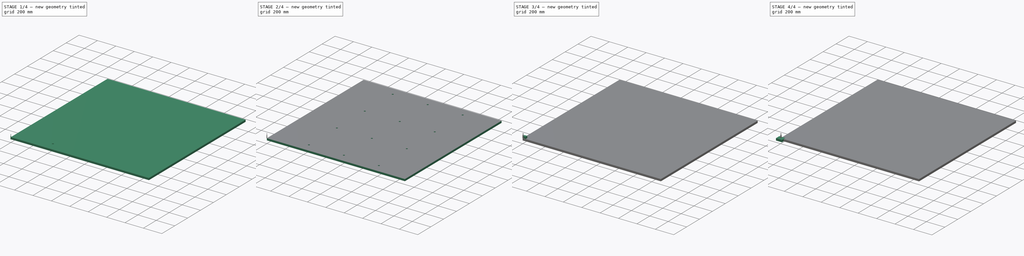
[diagram: build sequence overview — one tinted view per stage of 4, left to right]
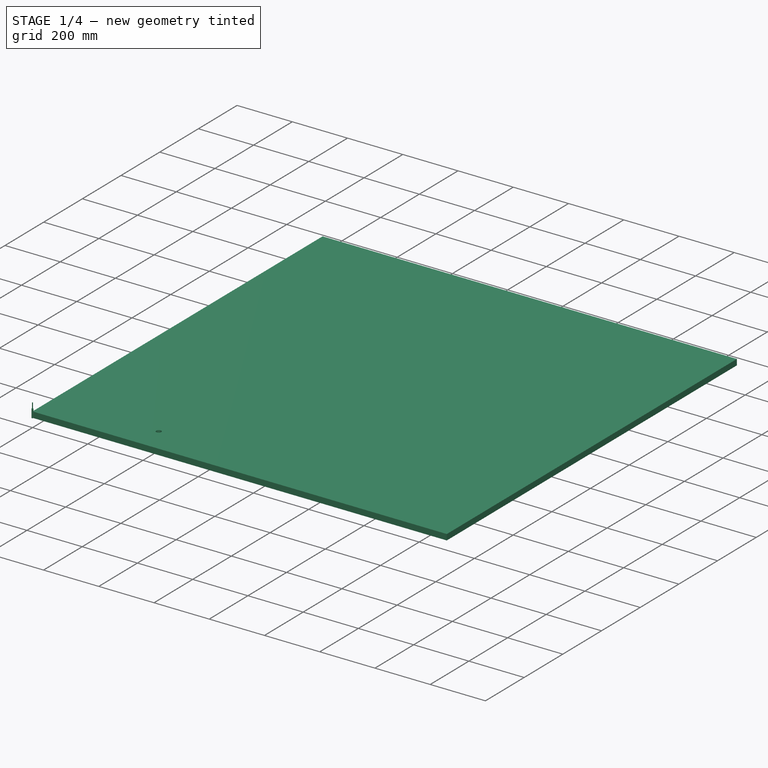
[diagram: stage 1 of 4 — iso view after this stage's code; geometry added in this stage tinted green]
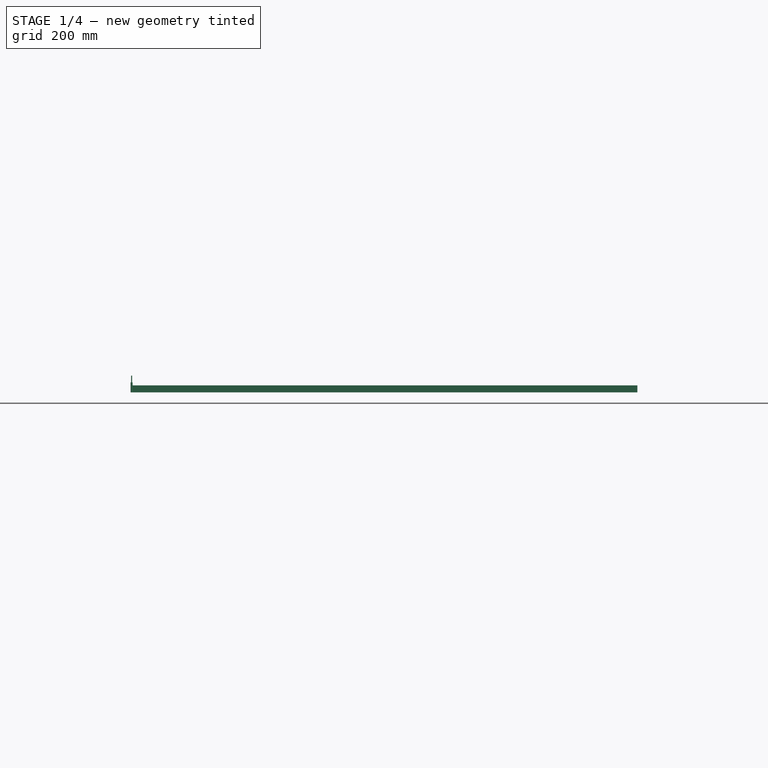
[diagram: stage 1 of 4 — front view after this stage's code; geometry added in this stage tinted green]
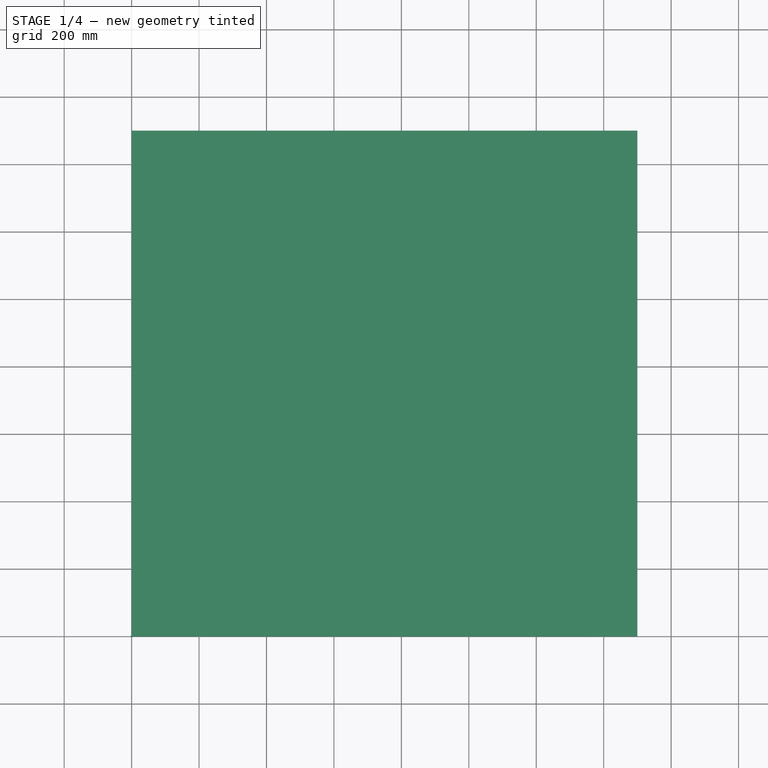
[diagram: stage 1 of 4 — top view after this stage's code; geometry added in this stage tinted green]
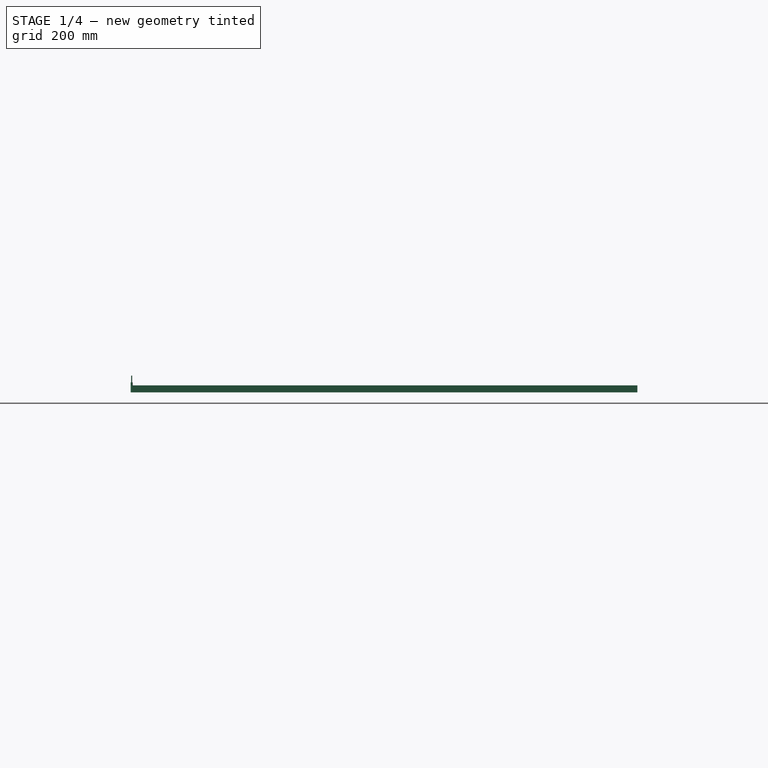
[diagram: stage 1 of 4 — right view after this stage's code; geometry added in this stage tinted green]
FCSTD DOCUMENT  (FreeCAD 0.20R29410 (Git))
Label: test_cnc_hole
License: All rights reserved
LicenseURL: http://en.wikipedia.org/wiki/All_rights_reserved
objects: Path::FeaturePython×8, Part::FeaturePython×6, App::DocumentObjectGroup×6, Sketcher::SketchObject×5, PartDesign::Pad×3, PartDesign::Mirrored×3, PartDesign::MultiTransform×2, PartDesign::Body×2, App::FeaturePython×2, Part::Feature×2, PartDesign::Pocket×2, PartDesign::LinearPattern×2, PartDesign::Plane×1
note: 35 computed .brp shape members not serialized (recipe doc carries the construction recipe); baked Part::Feature solids carry a one-line shape summary decoded from their .brp

FEATURE [Path::FeaturePython] _mm_Endmill001  label="6mm_Endmill001"  # Path/CAM operation (typed FeaturePython)
  HorizFeed = 0.333333
  HorizRapid = 0
  SpindleDir = 0
  SpindleSpeed = 17000
  Tool = -> ToolBit001
  ToolNumber = 2
  VertFeed = 0.333333
  VertRapid = 0
  expr: HorizRapid = SetupSheet.HorizRapid
  expr: VertRapid = SetupSheet.VertRapid
FEATURE [App::DocumentObjectGroup] Tools
  Group = -> [_mm_Endmill001]
FEATURE [Path::FeaturePython] Pocket3D  # Path/CAM operation (typed FeaturePython)
  Active = true
  AdaptivePocketFinish = false
  AdaptivePocketStart = false
  AreaParams:
    Tolerance = 1e-07
    FitArcs = True
    Simplify = False
    CleanDistance = 0.0
    Accuracy = 0.01
    Unit = 1.0
    MinArcPoints = 4
    MaxArcPoints = 100
    ClipperScale = 10000000.0
    Fill = 0
    Coplanar = 0
    Reorient = True
    Outline = False
    Explode = False
    OpenMode = 0
    Deflection = 0.01
    SubjectFill = 0
    ClipFill = 0
    Offset = 0.0
    ExtraPass = 0
    Stepover = 0.0
    LastStepover = 0.0
    JoinType = 0
    EndType = 0
    MiterLimit = 2.0
    RoundPrecision = 0.0
    PocketMode = 4
    ToolRadius = 3.0
    PocketExtraOffset = 0.0
    PocketStepover = 3.0
    PocketLastStepover = 0.0
    FromCenter = True
    Angle = 45.0
    AngleShift = 0.0
    Shift = 0.0
    Thicken = False
    SectionCount = -1
    Stepdown = 1.0
    SectionOffset = 0.0
    SectionTolerance = 1e-06
    SectionMode = 2
    Project = False
  Base = -> [Clone]
  ClearanceHeight = 6
  CoolantMode = 0
  CutMode = 1
  CycleTime = 00:47:56
  ExtraOffset = 0
  FinalDepth = -21
  FinishDepth = 0
  HandleMultipleFeatures = 0
  KeepToolDown = true
  MinTravel = true
  OffsetPattern = 2
  OpFinalDepth = -21
  OpStartDepth = 1
  OpStockZMax = 1
  OpStockZMin = -22
  OpToolDiameter = 6
  PathParams = {'orientation': 0, 'sort_mode': 3, 'threshold': 6.003, 'feedrate': 0.3333333333333333, 'feedrate_v': 0.3333333333333333, 'verbose': True, 'resume_height': 3.9999999999999964, 'retraction': 5.9999999999999964, 'return_end': True, 'preamble': False, 'start': Vector (0.0, 0.0, 0.0)}
  PocketLastStepOver = 0
  ProcessStockArea = false
  SafeHeight = 4
  SplitArcs = false
  StartAt = 0
  StartDepth = 1
  StartPoint = (0,0,0)
  StepDown = 3
  StepOver = 50
  ToolController = -> _mm_Endmill001
  UseStartPoint = true
  ZigZagAngle = 45
  expr: ClearanceHeight = OpStockZMax + SetupSheet.ClearanceHeightOffset
  expr: FinalDepth = OpFinalDepth
  expr: OpFinalDepth = -21mm
  expr: SafeHeight = OpStockZMax + SetupSheet.SafeHeightOffset
  expr: StartDepth = OpStartDepth
  expr: StepDown = 3
FEATURE [Path::FeaturePython] Array  # Path/CAM operation (typed FeaturePython)
  Active = true
  Angle = 0
  Base = -> [Pocket3D]
  Centre = (0,0,0)
  Copies = 2
  CopiesX = 0
  CopiesY = 0
  JitterMagnitude = (0,0,0)
  JitterPercent = 0
  JitterSeed = 0
  Offset = (0,362,0)
  SwapDirection = false
  ToolController = -> _mm_Endmill001
  Type = 0
  expr: .Placement.Base.x = Pocket3D.Placement.Base.x
  expr: .Placement.Base.y = Pocket3D.Placement.Base.y
FEATURE [Path::FeaturePython] Array001  # Path/CAM operation (typed FeaturePython)
  Active = true
  Angle = 0
  Base = -> [Array,Pocket3D]
  Centre = (0,0,0)
  Copies = 2
  CopiesX = 0
  CopiesY = 0
  JitterMagnitude = (0,0,0)
  JitterPercent = 0
  JitterSeed = 0
  Offset = (380,0,0)
  SwapDirection = false
  ToolController = -> _mm_Endmill001
  Type = 0
  expr: .Placement.Base.x = Pocket3D.Placement.Base.x
  expr: .Placement.Base.y = Pocket3D.Placement.Base.y
FEATURE [App::DocumentObjectGroup] Operations
  Group = -> [Pocket3D,Array,Array001]
FEATURE [Path::FeaturePython] Job  # Path/CAM operation (typed FeaturePython)
  CycleTime = 00:47:56
  Fixtures = G54
  GeometryTolerance = 0.01
  JobType = 0
  LastPostProcessDate = 2022-11-11 11:24:31.074388
  LastPostProcessOutput = <userpath>/dwnlds/10.test_cnc_hole.nc
  Model = -> Model
  Operations = -> Operations
  OrderOutputBy = 0
  PostProcessor = 11
  PostProcessorOutputFile = 10.%d.nc
  SetupSheet = -> SetupSheet
  SplitOutput = false
  Stock = -> Stock
  Tools = -> Tools
FEATURE [Part::Feature] topEdgeFace001
  shape: bbox 18 x 18 x 2e-07 mm, 1 faces, 0 solids (baked)
FEATURE [Part::Feature] topEdgeFace001001  label="topEdgeFace001"
  shape: bbox 18 x 18 x 2e-07 mm, 1 faces, 0 solids (baked)
FEATURE [Sketcher::SketchObject] Sketch002
  FullyConstrained = true
  MapMode = 5
  Support = -> [XY_Plane001]
  sketch-geometry (4):
    g0: LineSegment StartX=0 StartY=0 StartZ=0 EndX=1500 EndY=0 EndZ=0
    g1: LineSegment StartX=1500 StartY=0 StartZ=0 EndX=1500 EndY=1500 EndZ=0
    g2: LineSegment StartX=1500 StartY=1500 StartZ=0 EndX=0 EndY=1500 EndZ=0
    g3: LineSegment StartX=0 StartY=1500 StartZ=0 EndX=0 EndY=0 EndZ=0
  constraints (11):
    c: Coincident(g0,g1)
    c: Coincident(g1,g2)
    c: Coincident(g2,g3)
    c: Coincident(g3,g0)
    c: Horizontal(g0)
    c: Horizontal(g2)
    c: Vertical(g1)
    c: Vertical(g3)
    c: Coincident(g0,g-1)
    c: Distance(g0) = 1500
    c: Distance(g3) = 1500
FEATURE [PartDesign::Pad] Pad002
  Direction = (0,0,1)
  Length = 21
  Length2 = 10
  Profile = -> Sketch002
  ReferenceAxis = -> Sketch002 [N_Axis]
  Type = 0
FEATURE [Sketcher::SketchObject] Sketch004
  AttachmentOffset = pos=(387,100,21) rot=(0,0,1;0rad)
  FullyConstrained = true
  MapMode = 5
  Placement = pos=(387,100,21) rot=(0,0,1;0rad)
  Support = -> [XY_Plane001]
  sketch-geometry (1):
    g0: Circle CenterX=0 CenterY=0 CenterZ=0 NormalX=0 NormalY=0 NormalZ=1 AngleXU=0 Radius=9
  constraints (2):
    c: Diameter(g0) = 18
    c: Coincident(g0,g-1)
FEATURE [PartDesign::Plane] DatumPlane
  AttachmentOffset = pos=(0,0,-750) rot=(0,0,1;0rad)
  Length = 1580.23
  MapMode = 5
  Placement = pos=(0,750,-1.665e-13) rot=(1,0,0;1.5708rad)
  ResizeMode = 0
  Support = -> [XZ_Plane001]
  Width = 105.227
FEATURE [PartDesign::Pocket] Pocket
  BaseFeature = -> Pad002
  Direction = (0,0,-1)
  Length = 16
  Length2 = 5
  Profile = -> Sketch004
  ReferenceAxis = -> Sketch004 [N_Axis]
  Type = 0
FEATURE [Part::FeaturePython] ToolBit002  label="6mm_Endmill002"  # Path/CAM toolbit (typed FeaturePython)
  BitPropertyNames = Chipload | CuttingEdgeHeight | Diameter | Flutes | Length | Material | ShankDiameter | SpindleDirection
  BitShape = <path>
  Chipload = 0
  CuttingEdgeHeight = 30
  Diameter = 6
  File = <userpath>/.local/share/FreeCAD/Macro/Bit/6mm_Endmill.fctb
  Flutes = 0
  Length = 50
  Material = 0
  ShankDiameter = 3
  ShapeName = endmill
  SpindleDirection = 0
FEATURE [Path::FeaturePython] _mm_Endmill002  label="6mm_Endmill003"  # Path/CAM operation (typed FeaturePython)
  HorizFeed = 0
  HorizRapid = 0
  SpindleDir = 0
  SpindleSpeed = 4
  Tool = -> ToolBit002
  ToolNumber = 2
  VertFeed = 0
  VertRapid = 0
  expr: HorizRapid = SetupSheet001.HorizRapid
  expr: VertRapid = SetupSheet001.VertRapid
FEATURE [App::DocumentObjectGroup] Tools001
  Group = -> [_mm_Endmill002]
FEATURE [Path::FeaturePython] Pocket3D001  # Path/CAM operation (typed FeaturePython)
  Active = true
  AdaptivePocketFinish = false
  AdaptivePocketStart = false
  AreaParams:
    Tolerance = 1e-07
    FitArcs = True
    Simplify = False
    CleanDistance = 0.0
    Accuracy = 0.01
    Unit = 1.0
    MinArcPoints = 4
    MaxArcPoints = 100
    ClipperScale = 10000000.0
    Fill = 0
    Coplanar = 0
    Reorient = True
    Outline = False
    Explode = False
    OpenMode = 0
    Deflection = 0.01
    SubjectFill = 0
    ClipFill = 0
    Offset = 0.0
    ExtraPass = 0
    Stepover = 0.0
    LastStepover = 0.0
    JoinType = 0
    EndType = 0
    MiterLimit = 2.0
    RoundPrecision = 0.0
    PocketMode = 4
    ToolRadius = 3.0
    PocketExtraOffset = 0.0
    PocketStepover = 3.0
    PocketLastStepover = 0.0
    FromCenter = True
    Angle = 45.0
    AngleShift = 0.0
    Shift = 0.0
    Thicken = False
    SectionCount = -1
    Stepdown = 1.0
    SectionOffset = 0.0
    SectionTolerance = 1e-06
    SectionMode = 2
    Project = False
  ClearanceHeight = 5
  CoolantMode = 0
  CutMode = 1
  CycleTime = Cycletime Error
  ExtraOffset = 0
  FinalDepth = -21
  FinishDepth = 0
  HandleMultipleFeatures = 0
  KeepToolDown = true
  MinTravel = true
  OffsetPattern = 2
  OpFinalDepth = -21
  OpStartDepth = 3
  OpStockZMax = 0
  OpStockZMin = -22
  OpToolDiameter = 6
  PathParams = {'orientation': 0, 'sort_mode': 3, 'threshold': 6.003, 'feedrate': 0.0, 'feedrate_v': 0.0, 'verbose': True, 'resume_height': 3.0, 'retraction': 5.0, 'return_end': True, 'preamble': False, 'start': Vector (0.0, 0.0, 0.0)}
  PocketLastStepOver = 0
  ProcessStockArea = true
  SafeHeight = 3
  SplitArcs = false
  StartAt = 0
  StartDepth = 3
  StartPoint = (0,0,0)
  StepDown = 3
  StepOver = 50
  ToolController = -> _mm_Endmill002
  UseStartPoint = true
  ZigZagAngle = 45
  expr: ClearanceHeight = OpStockZMax + SetupSheet001.ClearanceHeightOffset
  expr: FinalDepth = OpFinalDepth
  expr: OpFinalDepth = -21mm
  expr: SafeHeight = OpStockZMax + SetupSheet001.SafeHeightOffset
  expr: StartDepth = OpStartDepth
FEATURE [App::DocumentObjectGroup] Operations001
  Group = -> [Pocket3D001]
FEATURE [Path::FeaturePython] Job001  # Path/CAM operation (typed FeaturePython)
  CycleTime = 00:00:00
  Fixtures = G54
  GeometryTolerance = 0.01
  JobType = 0
  LastPostProcessDate = 2022-11-11 12:28:00.187743
  LastPostProcessOutput = <userpath>/CE7D-4C9E/12.test_cnc_hole.nc
  Model = -> Model001
  Operations = -> Operations001
  OrderOutputBy = 0
  PostProcessor = 11
  PostProcessorOutputFile = holes.%d.nc
  SetupSheet = -> SetupSheet001
  SplitOutput = false
  Stock = -> Stock001
  Tools = -> Tools001
note: 2 file-system paths scrubbed to <path> (originals preserved in the JSON sidecar)
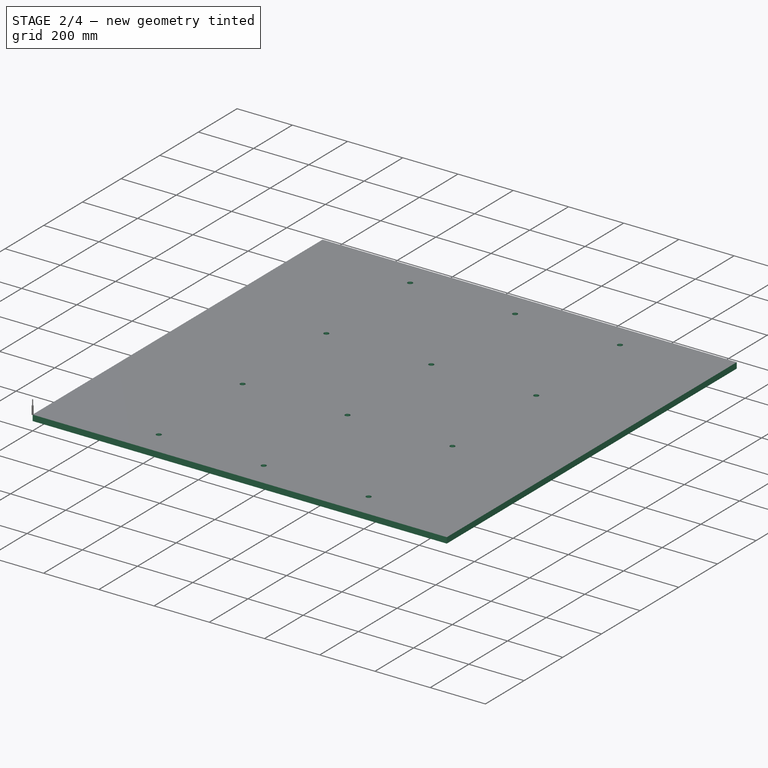
[diagram: stage 2 of 4 — iso view after this stage's code; geometry added in this stage tinted green]
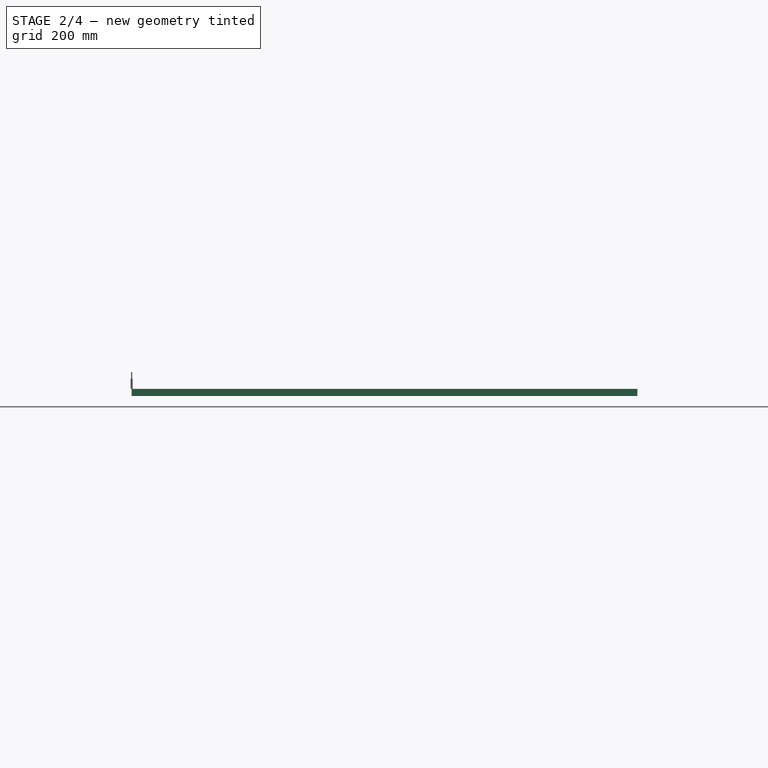
[diagram: stage 2 of 4 — front view after this stage's code; geometry added in this stage tinted green]
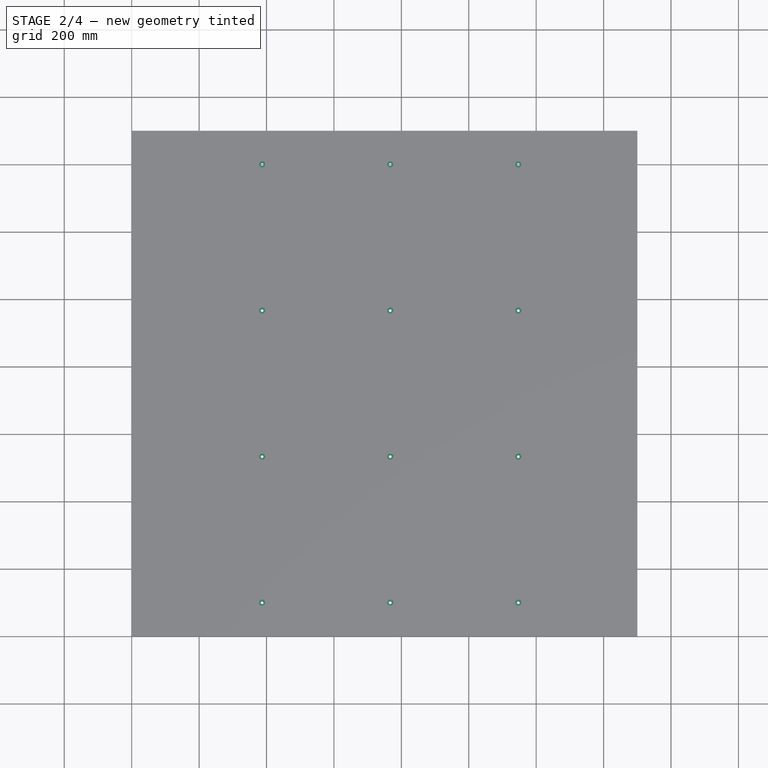
[diagram: stage 2 of 4 — top view after this stage's code; geometry added in this stage tinted green]
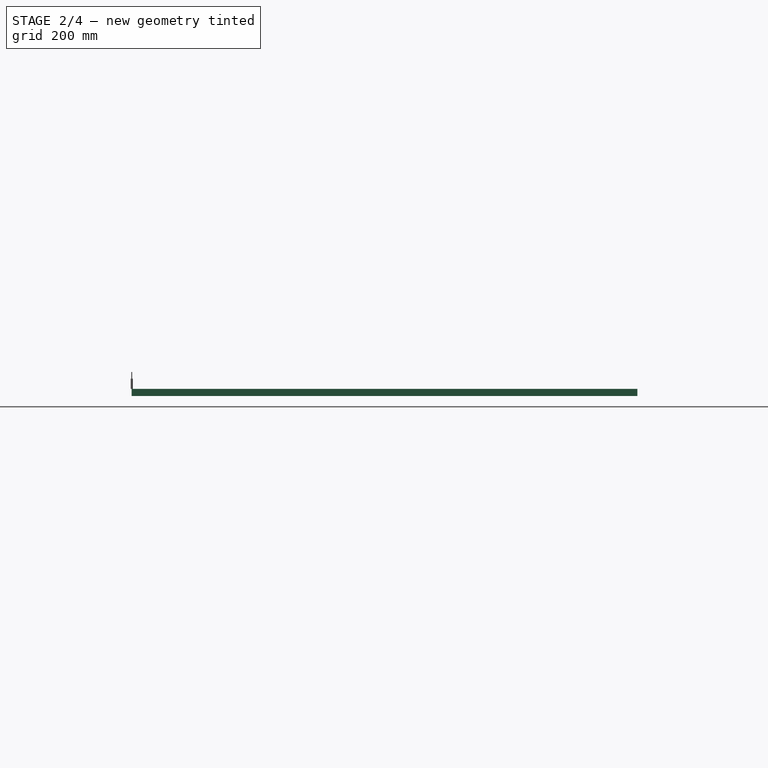
[diagram: stage 2 of 4 — right view after this stage's code; geometry added in this stage tinted green]
FEATURE [Sketcher::SketchObject] Sketch005
  AttachmentOffset = pos=(387,100,21) rot=(0,0,1;0rad)
  FullyConstrained = true
  MapMode = 5
  Placement = pos=(387,100,21) rot=(0,0,1;0rad)
  Support = -> [XY_Plane001]
  expr: .AttachmentOffset.Base.x = Sketch004.AttachmentOffset.Base.x
  expr: .AttachmentOffset.Base.y = Sketch004.AttachmentOffset.Base.y
  expr: .AttachmentOffset.Base.z = Sketch004.AttachmentOffset.Base.z
  sketch-geometry (1):
    g0: Circle CenterX=0 CenterY=0 CenterZ=0 NormalX=0 NormalY=0 NormalZ=1 AngleXU=0 Radius=4
  constraints (2):
    c: Coincident(g0,g-1)
    c: Diameter(g0) = 8
FEATURE [PartDesign::Pocket] Pocket001
  BaseFeature = -> Pocket
  Direction = (0,0,-1)
  Length = 5
  Length2 = 5
  Profile = -> Sketch005
  ReferenceAxis = -> Sketch005 [N_Axis]
  Type = 1
FEATURE [PartDesign::LinearPattern] LinearPattern
  Direction = -> Sketch004 [V_Axis]
  Length = 433.33
  Occurrences = 2
FEATURE [PartDesign::Mirrored] Mirrored002
  MirrorPlane = -> DatumPlane
FEATURE [PartDesign::LinearPattern] LinearPattern001
  Direction = -> Sketch004 [H_Axis]
  Length = 760
  Occurrences = 3
FEATURE [PartDesign::MultiTransform] MultiTransform001
  BaseFeature = -> Pocket001
  Originals = -> [Pocket,Pocket001]
  Transformations = -> [LinearPattern,Mirrored002,LinearPattern001]
FEATURE [PartDesign::Body] Body001
  Group = -> [Sketch002,Pad002,Sketch004,DatumPlane,Pocket,Sketch005,Pocket001,MultiTransform001,LinearPattern,Mirrored002,LinearPattern001]
  Origin = -> Origin001
  Tip = -> MultiTransform001
FEATURE [App::FeaturePython] SetupSheet001  # Path/CAM operation (typed FeaturePython)
  ClearanceHeightExpression = OpStockZMax+SetupSheet001.ClearanceHeightOffset
  ClearanceHeightOffset = 5
  CoolantMode = 0
  CoolantModes = None | Flood | Mist
  FinalDepthExpression = OpFinalDepth
  HorizRapid = 0
  SafeHeightExpression = OpStockZMax+SetupSheet001.SafeHeightOffset
  SafeHeightOffset = 3
  StartDepthExpression = OpStartDepth
  StepDownExpression = OpToolDiameter
  VertRapid = 0
FEATURE [Part::FeaturePython] Clone001  label="Model-Body001"  # Draft clone (typed FeaturePython)
  AttacherType = Attacher::AttachEngine3D
  Fuse = false
  Objects = -> [Body001]
  PathResource = Model
  Placement = pos=(0,0,-21) rot=(0,0,1;0rad)
  Scale = (1,1,1)
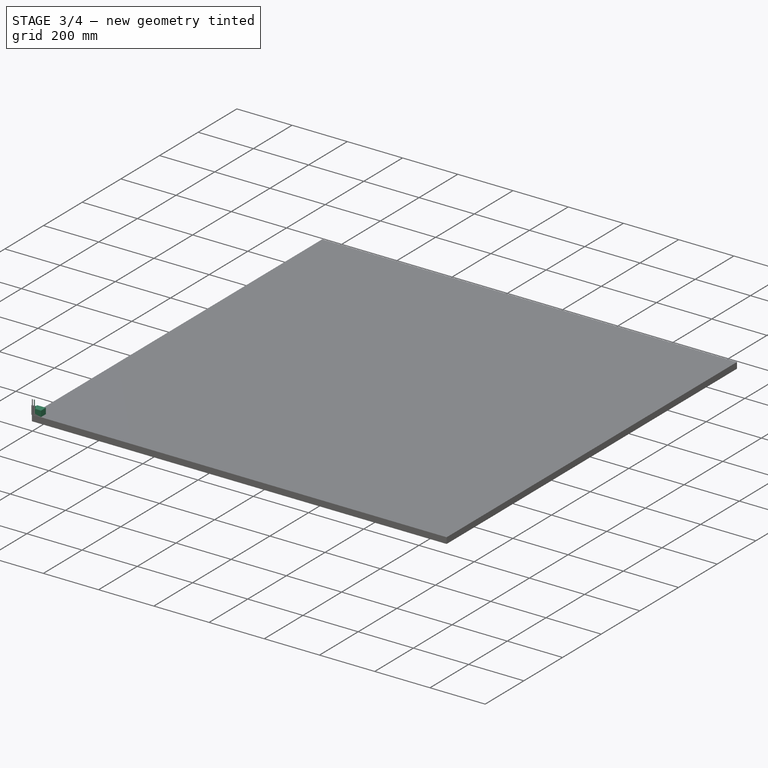
[diagram: stage 3 of 4 — iso view after this stage's code; geometry added in this stage tinted green]
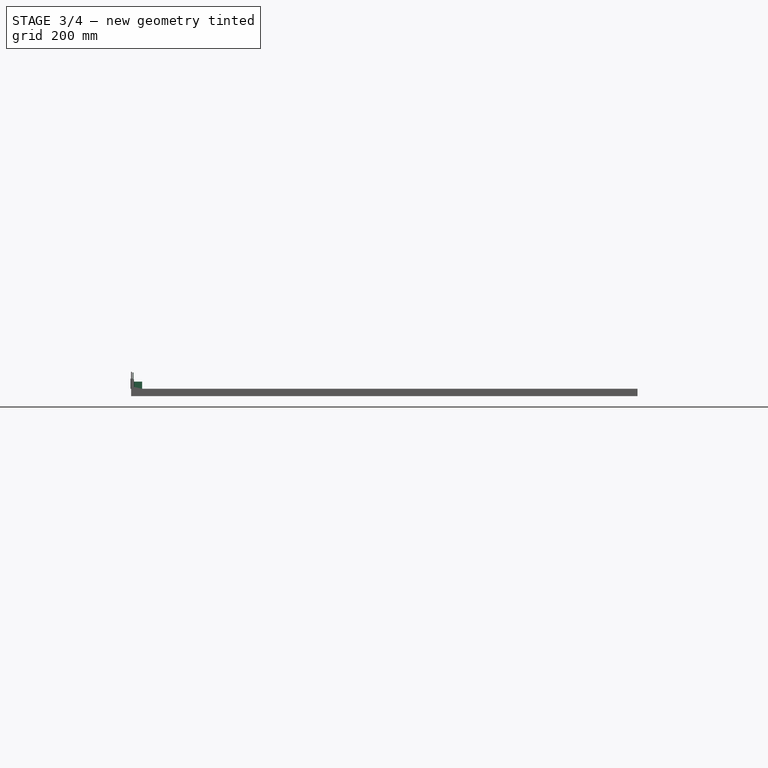
[diagram: stage 3 of 4 — front view after this stage's code; geometry added in this stage tinted green]
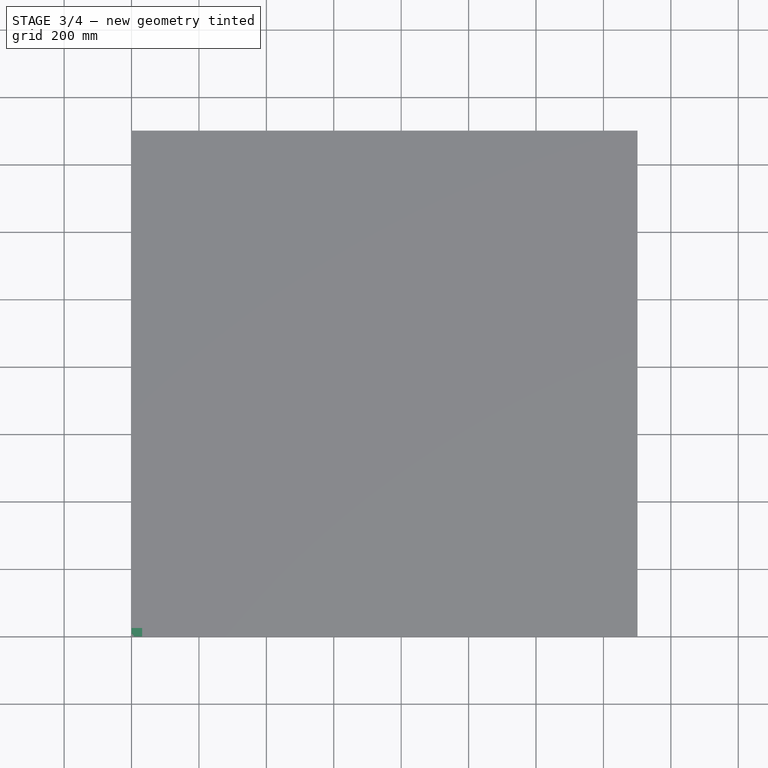
[diagram: stage 3 of 4 — top view after this stage's code; geometry added in this stage tinted green]
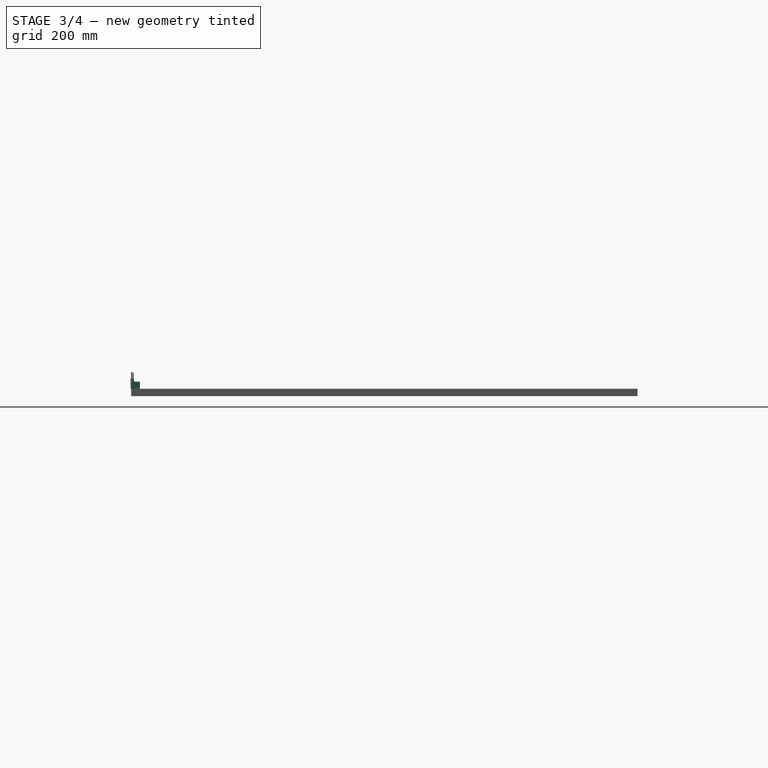
[diagram: stage 3 of 4 — right view after this stage's code; geometry added in this stage tinted green]
FEATURE [Sketcher::SketchObject] Sketch
  FullyConstrained = false
  MapMode = 5
  Support = -> [XY_Plane]
  sketch-geometry (5):
    g0: ArcOfCircle CenterX=0 CenterY=0 CenterZ=0 NormalX=0 NormalY=0 NormalZ=1 AngleXU=0 Radius=9 StartAngle=0 EndAngle=1.5708
    g1: LineSegment StartX=6e-16 StartY=9 StartZ=0 EndX=6e-16 EndY=24.9414 EndZ=0
    g2: LineSegment StartX=6e-16 StartY=24.9414 StartZ=0 EndX=31.4441 EndY=24.9414 EndZ=0
    g3: LineSegment StartX=31.4441 StartY=24.9414 StartZ=0 EndX=31.4441 EndY=0 EndZ=0
    g4: LineSegment StartX=31.4441 StartY=0 StartZ=0 EndX=9 EndY=0 EndZ=0
  constraints (13):
    c: Coincident(g0,g-1)
    c: PointOnObject(g0,g-1)
    c: PointOnObject(g0,g-2)
    c: Coincident(g0,g1)
    c: Coincident(g1,g2)
    c: Horizontal(g2)
    c: Coincident(g2,g3)
    c: PointOnObject(g3,g-1)
    c: Vertical(g3)
    c: Coincident(g3,g4)
    c: Coincident(g4,g0)
    c: Vertical(g1)
    c: Diameter(g0) = 18
FEATURE [PartDesign::Pad] Pad
  Direction = (0,0,1)
  Length = 21
  Length2 = 10
  Profile = -> Sketch
  ReferenceAxis = -> Sketch [N_Axis]
  Type = 0
FEATURE [Sketcher::SketchObject] Sketch001
  FullyConstrained = false
  MapMode = 5
  Support = -> [XY_Plane]
  expr: .AttachmentOffset.Base.x = Sketch.AttachmentOffset.Base.x
  expr: .AttachmentOffset.Base.y = Sketch.AttachmentOffset.Base.y
  expr: Constraints[12] = Sketch.Constraints[12]
  sketch-geometry (8):
    g0: ArcOfCircle CenterX=0 CenterY=0 CenterZ=0 NormalX=0 NormalY=0 NormalZ=1 AngleXU=0 Radius=9 StartAngle=0 EndAngle=1.5708
    g1: LineSegment StartX=2e-16 StartY=9 StartZ=0 EndX=2e-16 EndY=24.9414 EndZ=0
    g2: LineSegment StartX=2e-16 StartY=24.9414 StartZ=0 EndX=31.4441 EndY=24.9414 EndZ=0
    g3: LineSegment StartX=31.4441 StartY=24.9414 StartZ=0 EndX=31.4441 EndY=0 EndZ=0
    g4: LineSegment StartX=31.4441 StartY=0 StartZ=0 EndX=9 EndY=0 EndZ=0
    g5: LineSegment StartX=2e-16 StartY=9 StartZ=0 EndX=2e-16 EndY=4 EndZ=0
    g6: LineSegment StartX=4 StartY=0 StartZ=0 EndX=9 EndY=0 EndZ=0
    g7: ArcOfCircle CenterX=0 CenterY=0 CenterZ=0 NormalX=0 NormalY=0 NormalZ=1 AngleXU=0 Radius=4 StartAngle=0 EndAngle=1.5708
  constraints (21):
    c: Coincident(g0,g-1)
    c: PointOnObject(g0,g-1)
    c: PointOnObject(g0,g-2)
    c: Coincident(g0,g1)
    c: Coincident(g1,g2)
    c: Horizontal(g2)
    c: Coincident(g2,g3)
    c: PointOnObject(g3,g-1)
    c: Vertical(g3)
    c: Coincident(g3,g4)
    c: Coincident(g4,g0)
    c: Vertical(g1)
    c: Diameter(g0) = 18
    c: Coincident(g5,g0)
    c: Coincident(g6,g0)
    c: Coincident(g7,g0)
    c: Diameter(g7) = 8
    c: Coincident(g6,g7)
    c: Coincident(g5,g7)
    c: Vertical(g5)
    c: Horizontal(g6)
FEATURE [PartDesign::Pad] Pad001
  BaseFeature = -> Pad
  Direction = (0,0,1)
  Length = 5
  Length2 = 10
  Profile = -> Sketch001
  ReferenceAxis = -> Sketch001 [N_Axis]
  Type = 0
FEATURE [Part::FeaturePython] ToolBit001  label="6mm_Endmill"  # Path/CAM toolbit (typed FeaturePython)
  BitPropertyNames = Chipload | CuttingEdgeHeight | Diameter | Flutes | Length | Material | ShankDiameter | SpindleDirection
  BitShape = <path>
  Chipload = 0
  CuttingEdgeHeight = 30
  Diameter = 6
  File = <userpath>/.local/share/FreeCAD/Macro/Bit/6mm_Endmill.fctb
  Flutes = 0
  Length = 50
  Material = 0
  Placement = pos=(4.24037,4.24037,-2) rot=(0,0,1;0rad)
  ShankDiameter = 3
  ShapeName = endmill
  SpindleDirection = 0
FEATURE [App::DocumentObjectGroup] Model001
  Group = -> [Clone001]
FEATURE [Part::FeaturePython] Stock001  # WARN: FeaturePython — macro-defined, semantics opaque (R4)
  Base = -> Model001
  ExtXneg = 1
  ExtXpos = 1
  ExtYneg = 1
  ExtYpos = 1
  ExtZneg = 1
  ExtZpos = 0
  Placement = pos=(0,0,-21) rot=(0,0,1;0rad)
  StockType = FromBase
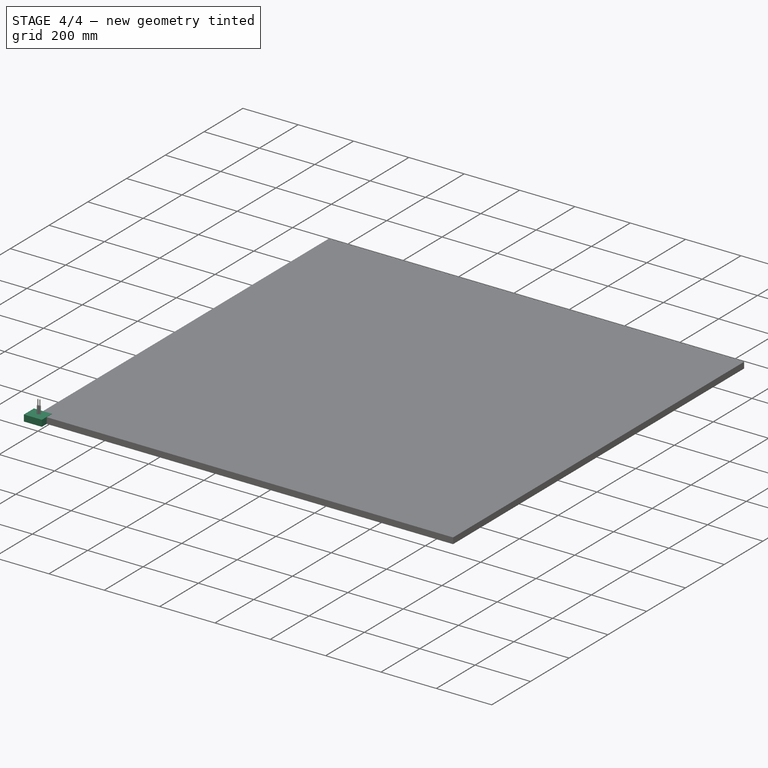
[diagram: stage 4 of 4 — iso view after this stage's code; geometry added in this stage tinted green]
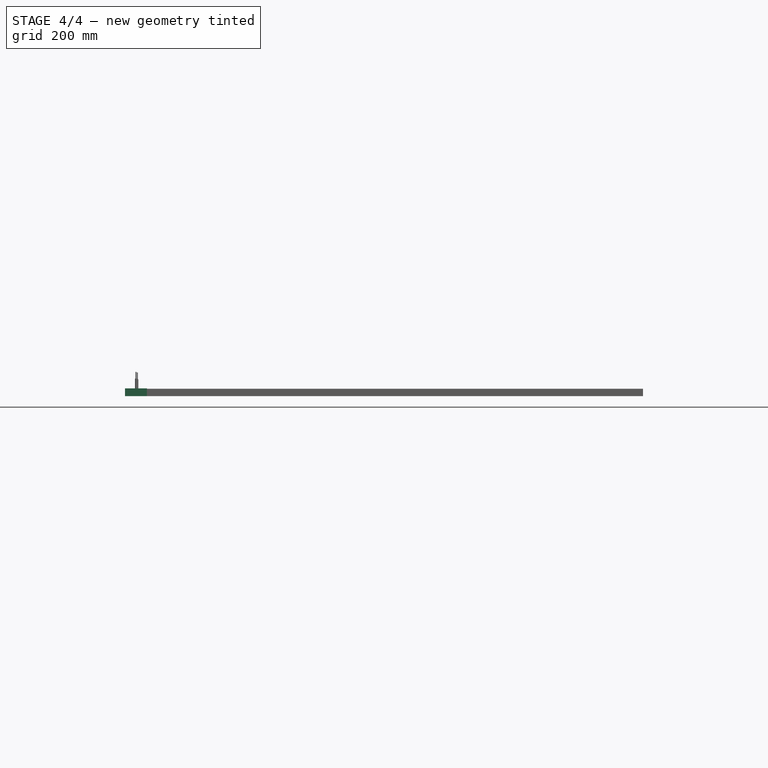
[diagram: stage 4 of 4 — front view after this stage's code; geometry added in this stage tinted green]
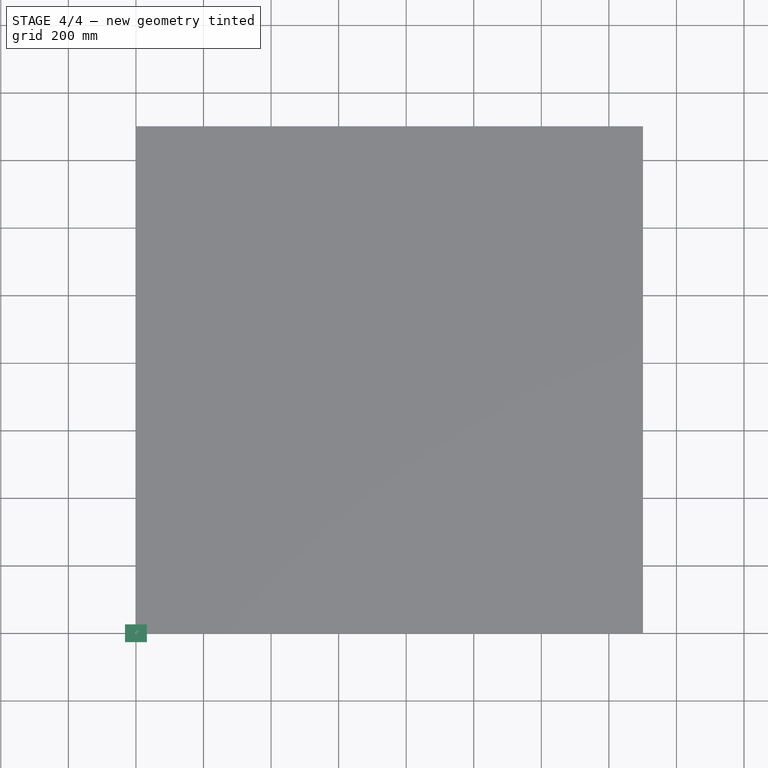
[diagram: stage 4 of 4 — top view after this stage's code; geometry added in this stage tinted green]
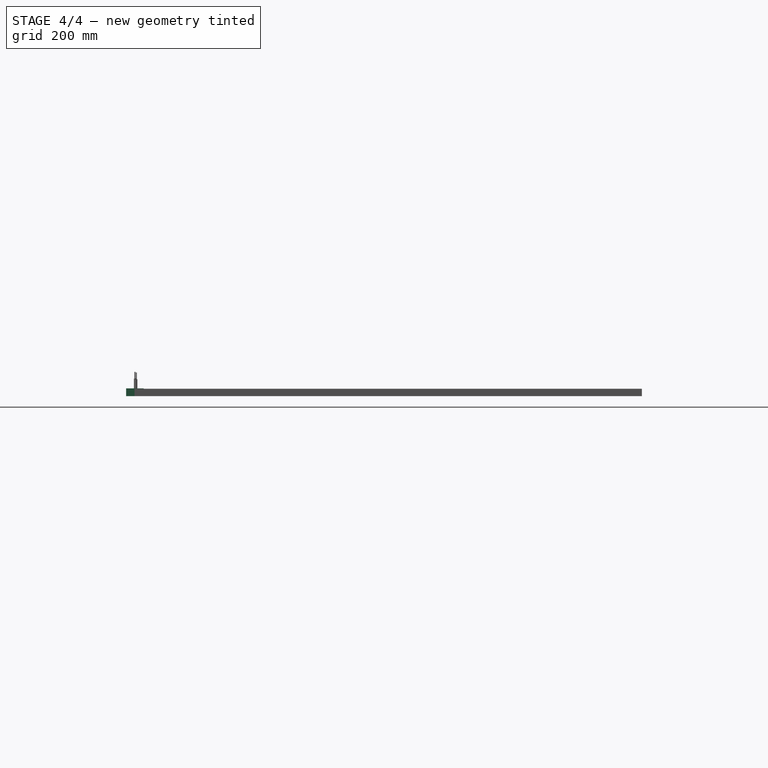
[diagram: stage 4 of 4 — right view after this stage's code; geometry added in this stage tinted green]
FEATURE [PartDesign::Mirrored] Mirrored
  MirrorPlane = -> Sketch [V_Axis]
FEATURE [PartDesign::Mirrored] Mirrored001
  MirrorPlane = -> Sketch [H_Axis]
FEATURE [PartDesign::MultiTransform] MultiTransform
  BaseFeature = -> Pad001
  Originals = -> [Pad,Pad001]
  Transformations = -> [Mirrored,Mirrored001]
FEATURE [PartDesign::Body] Body
  Group = -> [Sketch,Pad,Sketch001,Pad001,MultiTransform,Mirrored,Mirrored001]
  Origin = -> Origin
  Tip = -> MultiTransform
FEATURE [App::FeaturePython] SetupSheet  # Path/CAM operation (typed FeaturePython)
  ClearanceHeightExpression = OpStockZMax+SetupSheet.ClearanceHeightOffset
  ClearanceHeightOffset = 5
  CoolantMode = 0
  CoolantModes = None | Flood | Mist
  FinalDepthExpression = OpFinalDepth
  HorizRapid = 0
  SafeHeightExpression = OpStockZMax+SetupSheet.SafeHeightOffset
  SafeHeightOffset = 3
  StartDepthExpression = OpStartDepth
  StepDownExpression = OpToolDiameter
  VertRapid = 0
FEATURE [Part::FeaturePython] Clone  label="Model-Body"  # Draft clone (typed FeaturePython)
  AttacherType = Attacher::AttachEngine3D
  Fuse = false
  Objects = -> [Body]
  PathResource = Model
  Placement = pos=(395,362,-21) rot=(0,0,1;0rad)
  Scale = (1,1,1)
FEATURE [App::DocumentObjectGroup] Model
  Group = -> [Clone]
FEATURE [Part::FeaturePython] Stock  # WARN: FeaturePython — macro-defined, semantics opaque (R4)
  Base = -> Model
  ExtXneg = 1
  ExtXpos = 1
  ExtYneg = 1
  ExtYpos = 1
  ExtZneg = 1
  ExtZpos = 1
  Placement = pos=(-31.4441,-24.9414,-21) rot=(0,0,1;0rad)
  StockType = FromBase
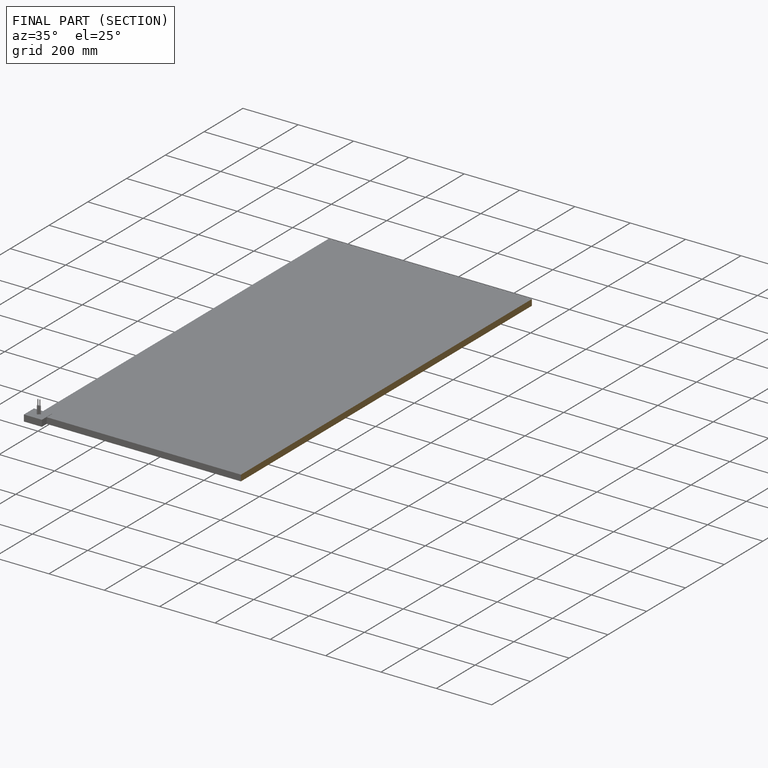
[diagram: finished part — half-section view (interior)]
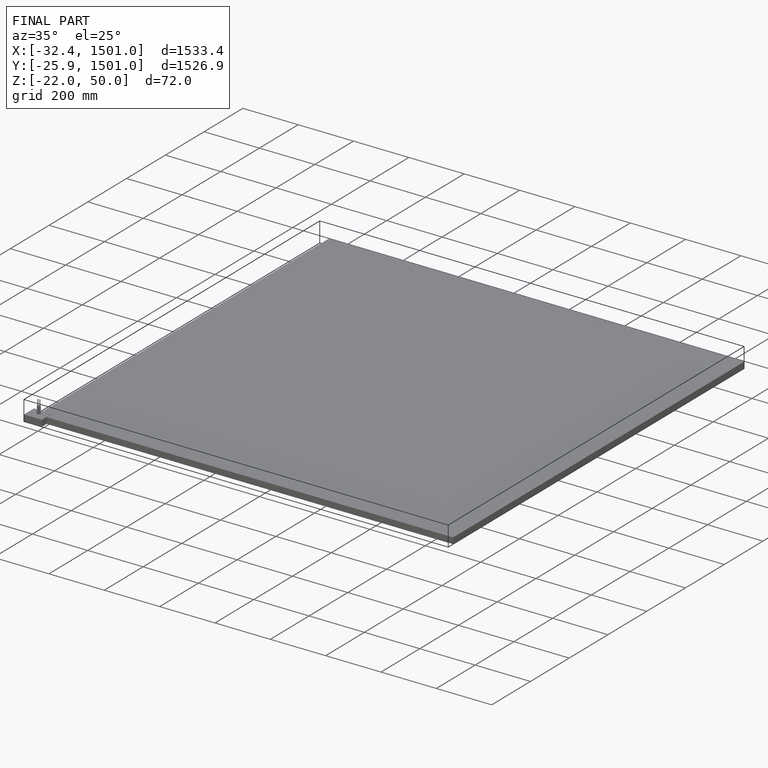
[diagram: finished part — iso view with bounding-box wireframe]
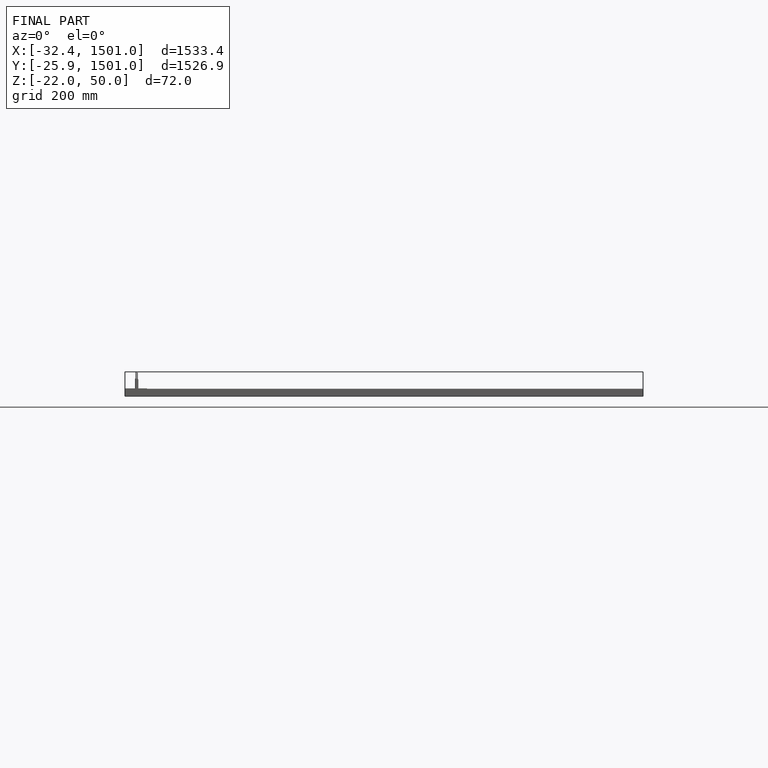
[diagram: finished part — front view with bounding-box wireframe]
